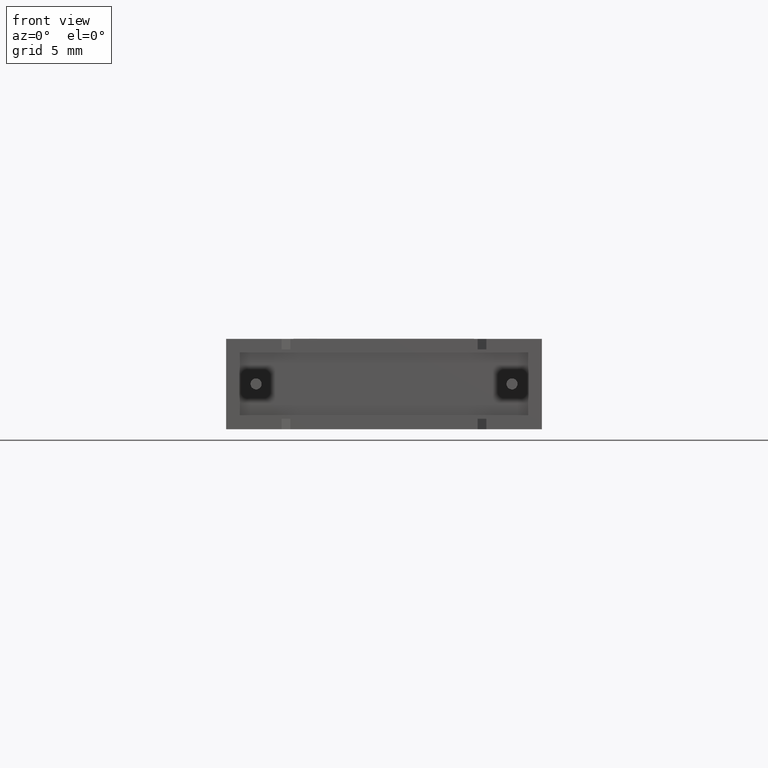
[diagram: clean part render]
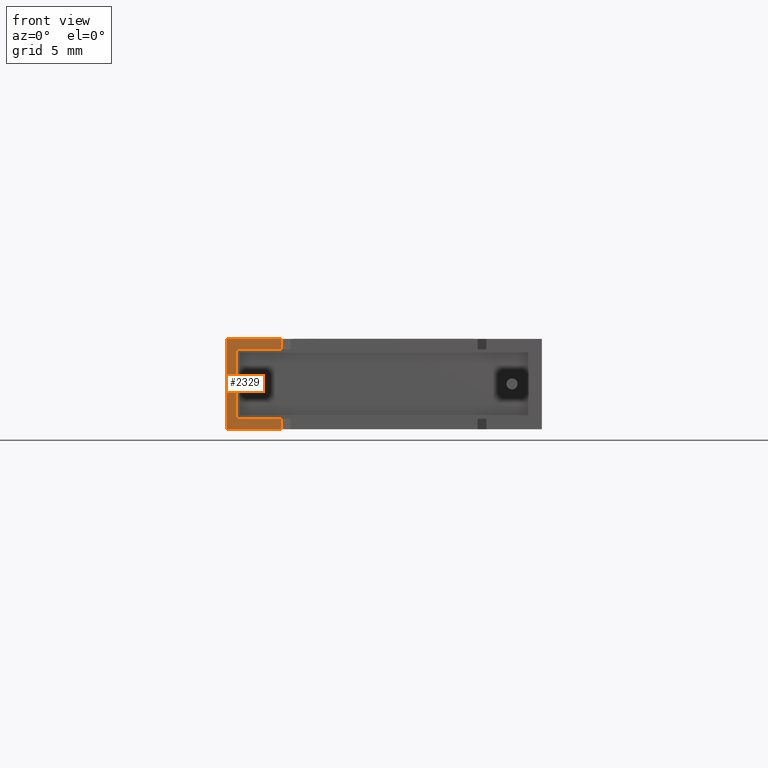
[diagram: same view with one face highlighted and labeled with its STEP entity id]
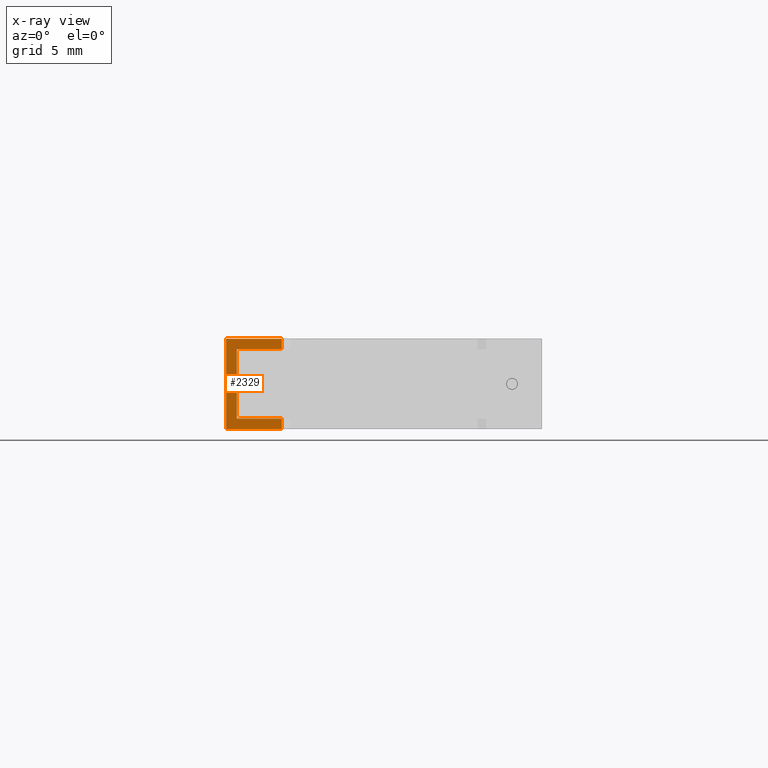
[diagram: x-ray of the same camera — body ghosted, the highlighted face saturated]
A machine part, front view. The second image highlights one B-rep face of the part: STEP entity #2329.
The next image is the same camera in x-ray: the body ghosted, the highlighted face saturated — about 0% of this face is hidden behind the body in this view.
In plain terms, the highlighted planar face has unit normal (0, 1, 0).
Its self-contained STEP definition (entity closure, byte-faithful):
#26 = VERTEX_POINT ( 'NONE', #1424 ) ;
#30 = ORIENTED_EDGE ( 'NONE', *, *, #1744, .T. ) ;
#35 = VERTEX_POINT ( 'NONE', #2587 ) ;
#43 = ORIENTED_EDGE ( 'NONE', *, *, #1037, .T. ) ;
#101 = CARTESIAN_POINT ( 'NONE',  ( 3.250000000000000444, 1.990051048614448376E-16, 4.683333394999999122 ) ) ;
#198 = VERTEX_POINT ( 'NONE', #2040 ) ;
#222 = CARTESIAN_POINT ( 'NONE',  ( 0.6166666050000000343, 0.000000000000000000, 0.6166666050000000343 ) ) ;
#477 = DIRECTION ( 'NONE',  ( 1.000000000000000000, 0.000000000000000000, 0.000000000000000000 ) ) ;
#538 = VERTEX_POINT ( 'NONE', #101 ) ;
#569 = VECTOR ( 'NONE', #1433, 1000.000000000000000 ) ;
#588 = DIRECTION ( 'NONE',  ( 1.000000000000000000, 0.000000000000000000, 0.000000000000000000 ) ) ;
#718 = VECTOR ( 'NONE', #1909, 1000.000000000000000 ) ;
#766 = EDGE_LOOP ( 'NONE', ( #43, #2939, #1734, #1789, #926, #1935, #2089, #30 ) ) ;
#785 = FACE_OUTER_BOUND ( 'NONE', #766, .T. ) ;
#825 = DIRECTION ( 'NONE',  ( 1.000000000000000000, 0.000000000000000000, 0.000000000000000000 ) ) ;
#842 = EDGE_CURVE ( 'NONE', #538, #2813, #2285, .T. ) ;
#855 = DIRECTION ( 'NONE',  ( 5.332141670183430817E-17, 0.000000000000000000, -1.000000000000000000 ) ) ;
#926 = ORIENTED_EDGE ( 'NONE', *, *, #2119, .F. ) ;
#954 = LINE ( 'NONE', #972, #718 ) ;
#972 = CARTESIAN_POINT ( 'NONE',  ( 0.000000000000000000, 0.000000000000000000, 5.299999999999999822 ) ) ;
#976 = LINE ( 'NONE', #222, #2539 ) ;
#1037 = EDGE_CURVE ( 'NONE', #35, #26, #1065, .T. ) ;
#1065 = LINE ( 'NONE', #1782, #1067 ) ;
#1067 = VECTOR ( 'NONE', #825, 1000.000000000000000 ) ;
#1089 = CARTESIAN_POINT ( 'NONE',  ( 3.250000000000000444, 1.990051048614448376E-16, 0.000000000000000000 ) ) ;
#1163 = PLANE ( 'NONE',  #1206 ) ;
#1201 = DIRECTION ( 'NONE',  ( 0.000000000000000000, 1.000000000000000000, 0.000000000000000000 ) ) ;
#1206 = AXIS2_PLACEMENT_3D ( 'NONE', #2104, #1201, #3040 ) ;
#1217 = CARTESIAN_POINT ( 'NONE',  ( 3.250000000000000444, 1.990051048614448376E-16, 5.299999999999999822 ) ) ;
#1264 = VECTOR ( 'NONE', #855, 1000.000000000000000 ) ;
#1424 = CARTESIAN_POINT ( 'NONE',  ( 3.250000000000000444, 1.990051048614448376E-16, 0.000000000000000000 ) ) ;
#1433 = DIRECTION ( 'NONE',  ( -1.000000000000000000, 0.000000000000000000, -1.004666098601887175E-16 ) ) ;
#1520 = EDGE_CURVE ( 'NONE', #1907, #198, #1797, .T. ) ;
#1569 = VECTOR ( 'NONE', #588, 1000.000000000000000 ) ;
#1734 = ORIENTED_EDGE ( 'NONE', *, *, #2806, .F. ) ;
#1744 = EDGE_CURVE ( 'NONE', #2019, #35, #954, .T. ) ;
#1750 = CARTESIAN_POINT ( 'NONE',  ( 0.6166666049999998123, 0.000000000000000000, 4.683333394999999122 ) ) ;
#1782 = CARTESIAN_POINT ( 'NONE',  ( 0.000000000000000000, 0.000000000000000000, 0.000000000000000000 ) ) ;
#1789 = ORIENTED_EDGE ( 'NONE', *, *, #1520, .F. ) ;
#1797 = LINE ( 'NONE', #1750, #1264 ) ;
#1907 = VERTEX_POINT ( 'NONE', #2642 ) ;
#1909 = DIRECTION ( 'NONE',  ( -0.000000000000000000, -0.000000000000000000, -1.000000000000000000 ) ) ;
#1935 = ORIENTED_EDGE ( 'NONE', *, *, #842, .T. ) ;
#1939 = LINE ( 'NONE', #2662, #1569 ) ;
#1967 = CARTESIAN_POINT ( 'NONE',  ( 0.000000000000000000, 0.000000000000000000, 5.299999999999999822 ) ) ;
#2019 = VERTEX_POINT ( 'NONE', #1967 ) ;
#2040 = CARTESIAN_POINT ( 'NONE',  ( 0.6166666050000000343, 0.000000000000000000, 0.6166666049999998123 ) ) ;
#2056 = VECTOR ( 'NONE', #2645, 1000.000000000000000 ) ;
#2074 = LINE ( 'NONE', #3060, #569 ) ;
#2077 = VERTEX_POINT ( 'NONE', #2307 ) ;
#2089 = ORIENTED_EDGE ( 'NONE', *, *, #2549, .F. ) ;
#2104 = CARTESIAN_POINT ( 'NONE',  ( 0.000000000000000000, 0.000000000000000000, 5.299999999999999822 ) ) ;
#2119 = EDGE_CURVE ( 'NONE', #538, #1907, #2074, .T. ) ;
#2232 = DIRECTION ( 'NONE',  ( -0.000000000000000000, -0.000000000000000000, 1.000000000000000000 ) ) ;
#2285 = LINE ( 'NONE', #1089, #2371 ) ;
#2307 = CARTESIAN_POINT ( 'NONE',  ( 3.250000000000000444, 1.990051048614448376E-16, 0.6166666050000000343 ) ) ;
#2329 = ADVANCED_FACE ( 'NONE', ( #785 ), #1163, .F. ) ;
#2371 = VECTOR ( 'NONE', #2232, 1000.000000000000000 ) ;
#2539 = VECTOR ( 'NONE', #477, 1000.000000000000000 ) ;
#2546 = EDGE_CURVE ( 'NONE', #26, #2077, #2627, .T. ) ;
#2549 = EDGE_CURVE ( 'NONE', #2019, #2813, #1939, .T. ) ;
#2587 = CARTESIAN_POINT ( 'NONE',  ( 0.000000000000000000, 0.000000000000000000, 0.000000000000000000 ) ) ;
#2627 = LINE ( 'NONE', #2838, #2056 ) ;
#2642 = CARTESIAN_POINT ( 'NONE',  ( 0.6166666049999998123, 0.000000000000000000, 4.683333394999999122 ) ) ;
#2645 = DIRECTION ( 'NONE',  ( -0.000000000000000000, -0.000000000000000000, 1.000000000000000000 ) ) ;
#2662 = CARTESIAN_POINT ( 'NONE',  ( 0.000000000000000000, 0.000000000000000000, 5.299999999999999822 ) ) ;
#2806 = EDGE_CURVE ( 'NONE', #198, #2077, #976, .T. ) ;
#2813 = VERTEX_POINT ( 'NONE', #1217 ) ;
#2838 = CARTESIAN_POINT ( 'NONE',  ( 3.250000000000000444, 1.990051048614448376E-16, 0.000000000000000000 ) ) ;
#2939 = ORIENTED_EDGE ( 'NONE', *, *, #2546, .T. ) ;
#3040 = DIRECTION ( 'NONE',  ( 0.000000000000000000, -0.000000000000000000, 1.000000000000000000 ) ) ;
#3060 = CARTESIAN_POINT ( 'NONE',  ( 17.88333339499999752, 0.000000000000000000, 4.683333395000000898 ) ) ;